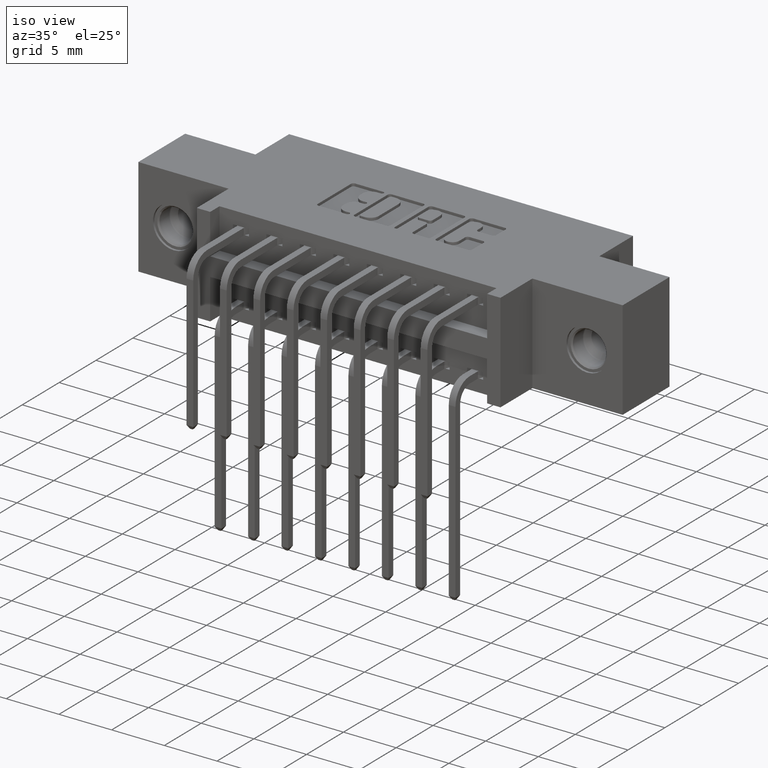
[diagram: clean part render]
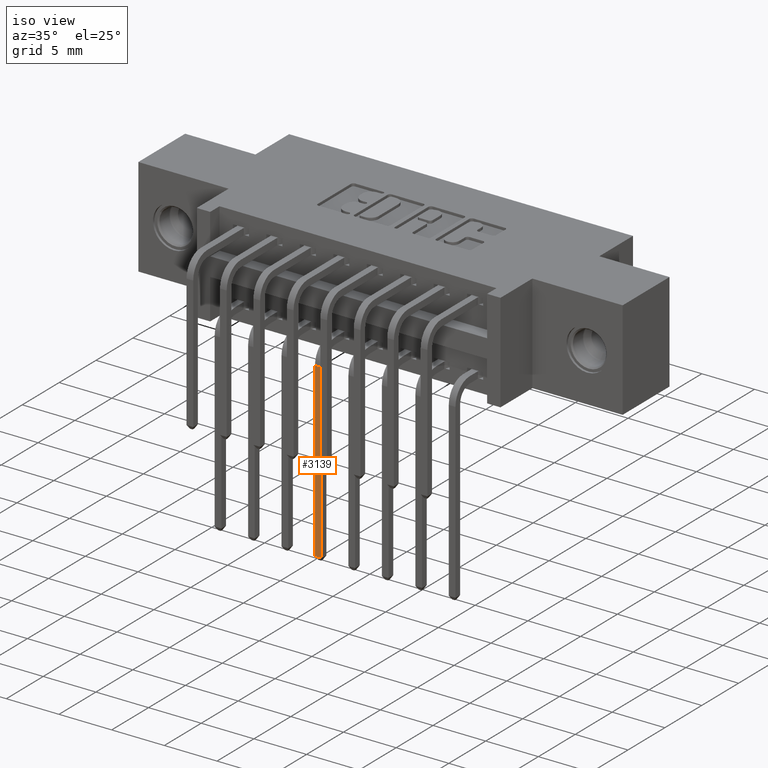
[diagram: same view with one face highlighted and labeled with its STEP entity id]
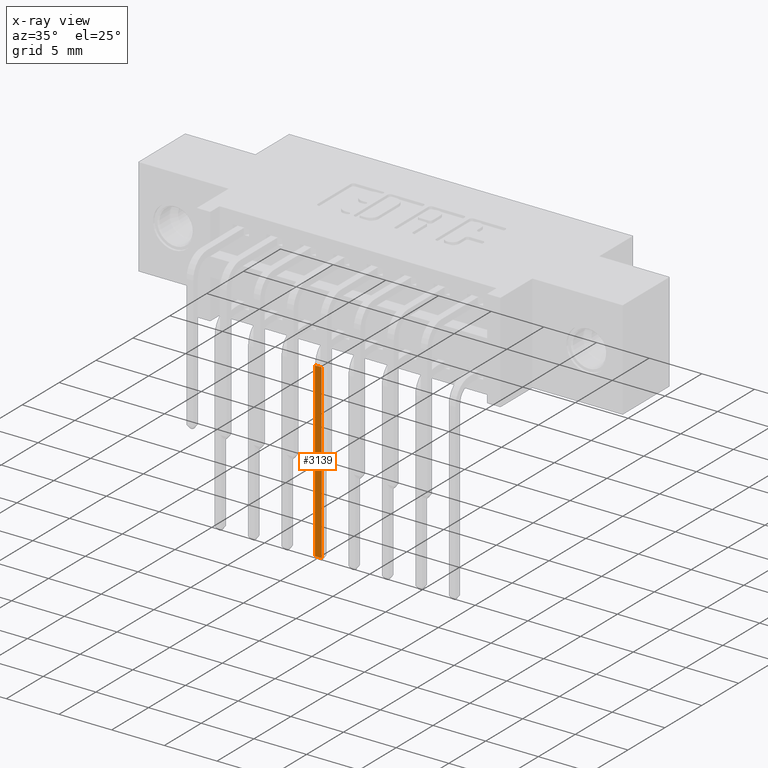
[diagram: x-ray of the same camera — body ghosted, the highlighted face saturated]
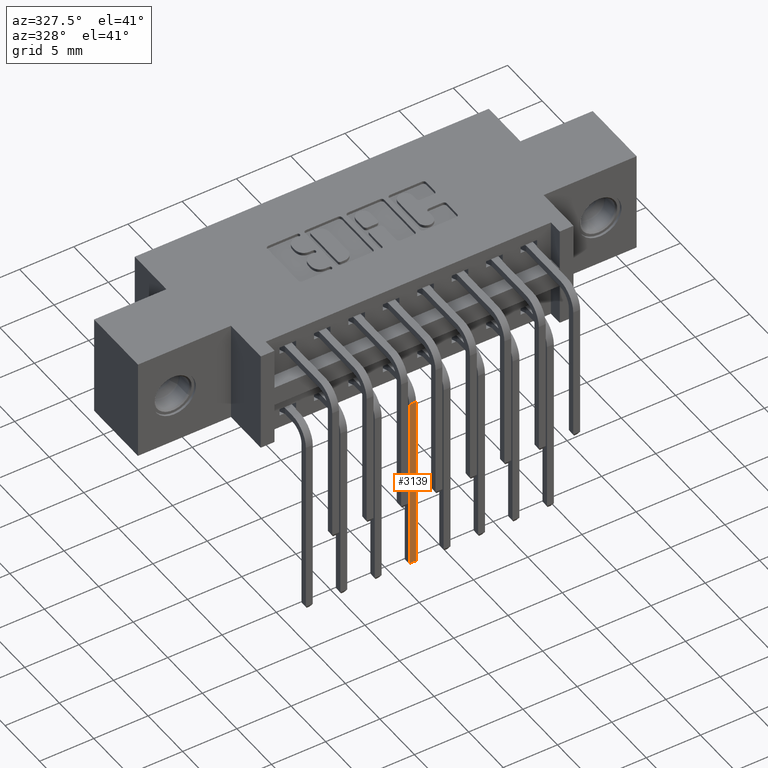
[diagram: same view with one face highlighted and labeled with its STEP entity id]
A machine part, iso view. The second image highlights one B-rep face of the part: STEP entity #3139.
The next image is the same camera in x-ray: the body ghosted, the highlighted face saturated — about 0% of this face is hidden behind the body in this view.
A second angle (auxiliary view) of the same face is appended — the face is thin or edge-on in the first view.
In plain terms, the highlighted planar face has unit normal (-0, 1, 0).
Its self-contained STEP definition (entity closure, byte-faithful):
#477 = CARTESIAN_POINT ( 'NONE',  ( 0.7307132034749404000, -0.6820000000427274300, 0.01250000000361143800 ) ) ;
#610 = EDGE_LOOP ( 'NONE', ( #6688, #7960, #654, #2819 ) ) ;
#616 = VECTOR ( 'NONE', #7856, 39.37007874015748100 ) ;
#654 = ORIENTED_EDGE ( 'NONE', *, *, #8816, .T. ) ;
#1403 = LINE ( 'NONE', #7026, #1561 ) ;
#1561 = VECTOR ( 'NONE', #8119, 39.37007874015748100 ) ;
#1990 = VECTOR ( 'NONE', #8665, 39.37007874015748100 ) ;
#2194 = FACE_OUTER_BOUND ( 'NONE', #610, .T. ) ;
#2229 = VERTEX_POINT ( 'NONE', #10726 ) ;
#2486 = CARTESIAN_POINT ( 'NONE',  ( 0.7307132034748585700, -0.03750000000159090000, 0.01250000000614399700 ) ) ;
#2819 = ORIENTED_EDGE ( 'NONE', *, *, #7006, .F. ) ;
#2886 = EDGE_CURVE ( 'NONE', #8492, #4579, #3423, .T. ) ;
#3139 = ADVANCED_FACE ( 'NONE', ( #2194 ), #8578, .F. ) ;
#3423 = LINE ( 'NONE', #7566, #1990 ) ;
#3522 = DIRECTION ( 'NONE',  ( -3.820022347840184800E-012, -7.107874099568204500E-014, -1.000000000000000000 ) ) ;
#4579 = VERTEX_POINT ( 'NONE', #12867 ) ;
#4682 = DIRECTION ( 'NONE',  ( -1.000000000000000000, 7.430778698956638100E-013, 3.820022347840132300E-012 ) ) ;
#4721 = AXIS2_PLACEMENT_3D ( 'NONE', #11554, #4682, #4877 ) ;
#4877 = DIRECTION ( 'NONE',  ( 3.820022347840184800E-012, 7.107874099568204500E-014, 1.000000000000000000 ) ) ;
#6335 = CARTESIAN_POINT ( 'NONE',  ( 0.7307132034671431900, -0.03750000000085439800, -0.01249999999389958200 ) ) ;
#6688 = ORIENTED_EDGE ( 'NONE', *, *, #11508, .F. ) ;
#7006 = EDGE_CURVE ( 'NONE', #2229, #11745, #10427, .T. ) ;
#7026 = CARTESIAN_POINT ( 'NONE',  ( 0.7307132034748585700, -0.03750000000159090000, 0.01250000000614399700 ) ) ;
#7566 = CARTESIAN_POINT ( 'NONE',  ( 0.7307132034749404000, -0.6820000000427274300, 0.01250000000361143800 ) ) ;
#7634 = CARTESIAN_POINT ( 'NONE',  ( 0.7307132034671431900, -0.03750000000085439800, -0.01249999999389958200 ) ) ;
#7826 = LINE ( 'NONE', #7634, #616 ) ;
#7856 = DIRECTION ( 'NONE',  ( -7.430778698936414000E-013, 1.000000000000000000, 7.107874099333974600E-014 ) ) ;
#7960 = ORIENTED_EDGE ( 'NONE', *, *, #2886, .T. ) ;
#8119 = DIRECTION ( 'NONE',  ( -7.430778698936414000E-013, 1.000000000000000000, 7.107874099333974600E-014 ) ) ;
#8492 = VERTEX_POINT ( 'NONE', #477 ) ;
#8578 = PLANE ( 'NONE',  #4721 ) ;
#8665 = DIRECTION ( 'NONE',  ( -3.820022347840184800E-012, -7.107874099568204500E-014, -1.000000000000000000 ) ) ;
#8816 = EDGE_CURVE ( 'NONE', #4579, #11745, #7826, .T. ) ;
#10427 = LINE ( 'NONE', #2486, #10911 ) ;
#10726 = CARTESIAN_POINT ( 'NONE',  ( 0.7307132034748585700, -0.03750000000159090000, 0.01250000000614399700 ) ) ;
#10911 = VECTOR ( 'NONE', #3522, 39.37007874015748100 ) ;
#11508 = EDGE_CURVE ( 'NONE', #8492, #2229, #1403, .T. ) ;
#11554 = CARTESIAN_POINT ( 'NONE',  ( 0.7307132034748585700, -0.03750000000159090000, 0.01250000000614399700 ) ) ;
#11745 = VERTEX_POINT ( 'NONE', #6335 ) ;
#12867 = CARTESIAN_POINT ( 'NONE',  ( 0.7307132034672412200, -0.6820000000412125300, -0.01249999999676324100 ) ) ;